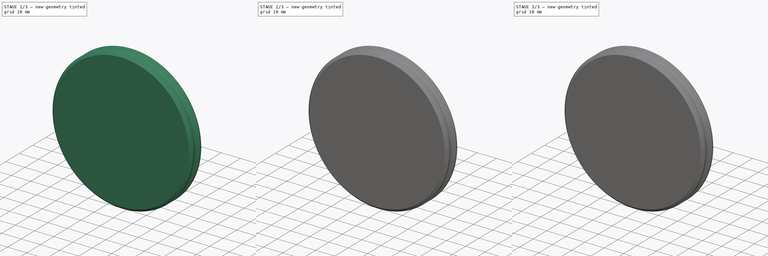
[diagram: build sequence overview — one tinted view per stage of 3, left to right]
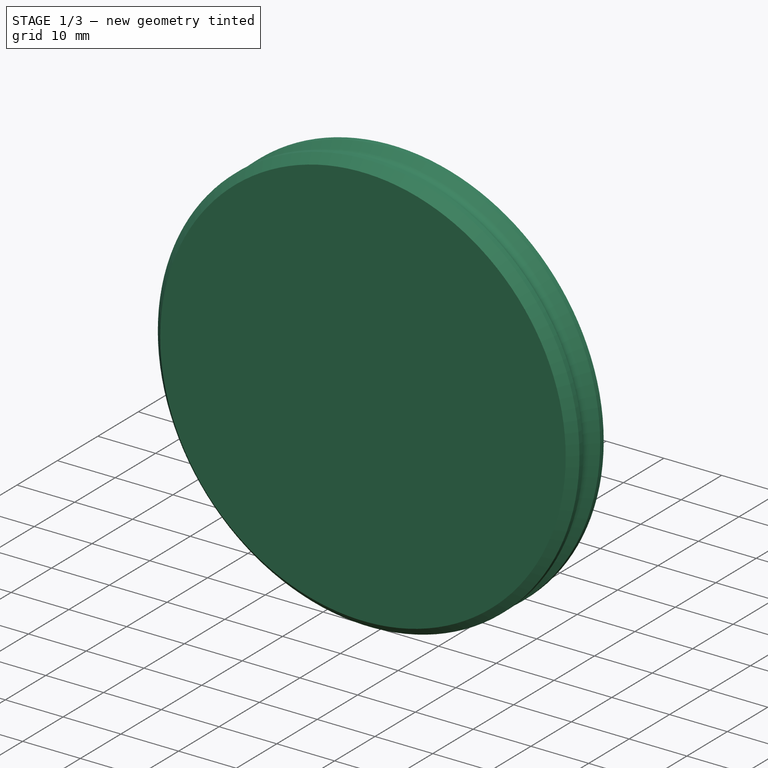
[diagram: stage 1 of 3 — iso view after this stage's code; geometry added in this stage tinted green]
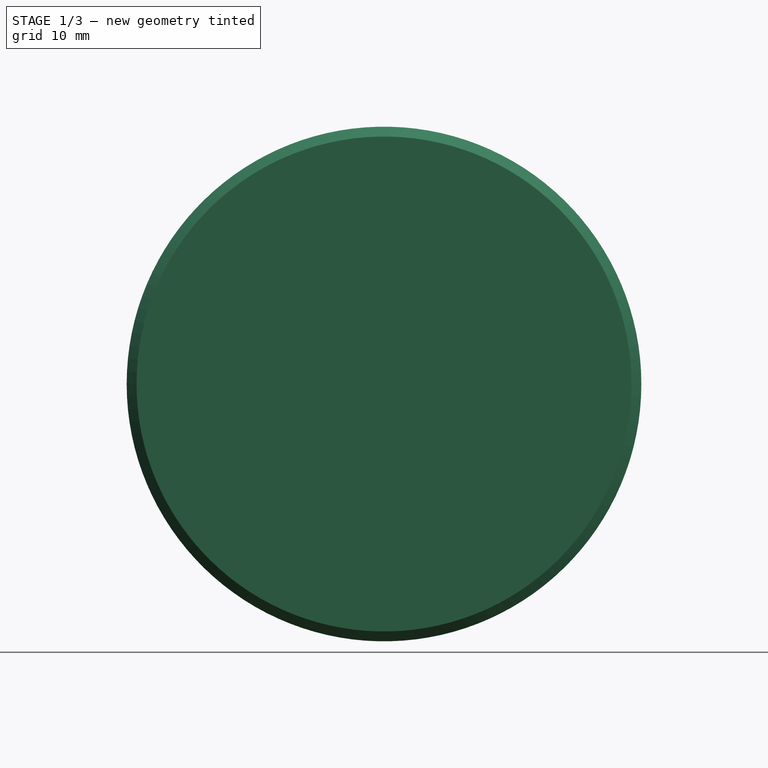
[diagram: stage 1 of 3 — front view after this stage's code; geometry added in this stage tinted green]
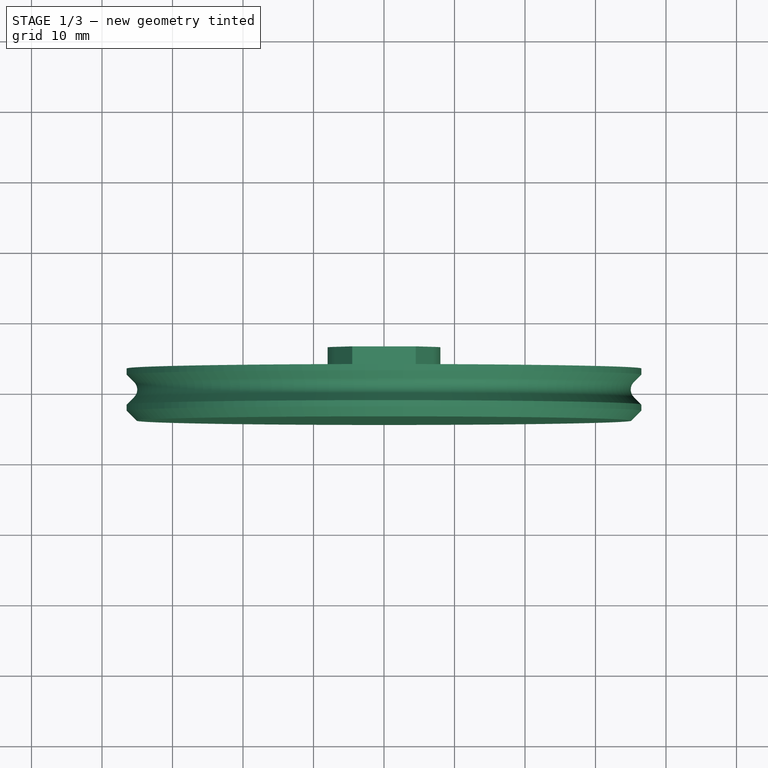
[diagram: stage 1 of 3 — top view after this stage's code; geometry added in this stage tinted green]
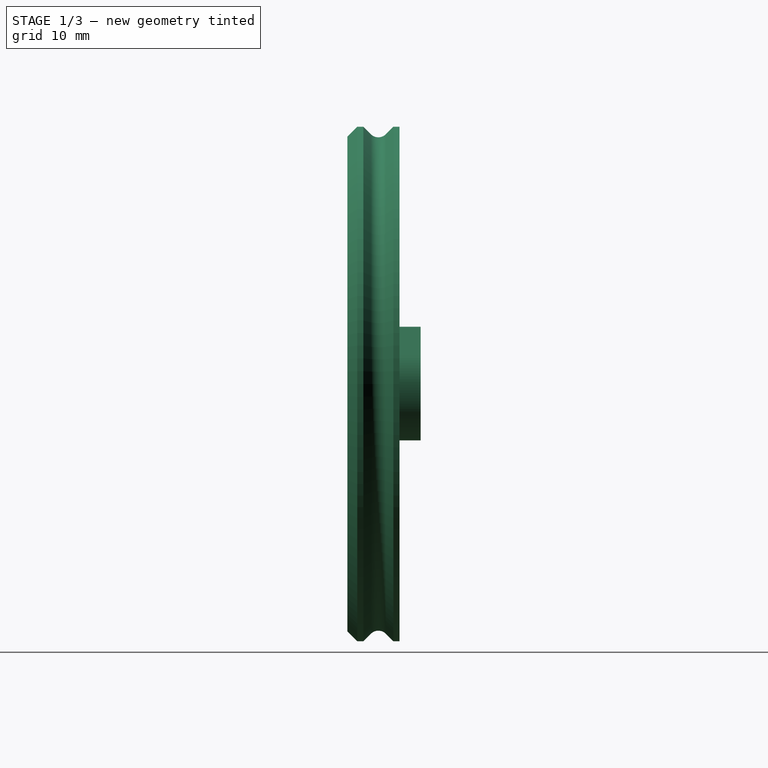
[diagram: stage 1 of 3 — right view after this stage's code; geometry added in this stage tinted green]
FCSTD DOCUMENT  (FreeCAD 0.20R29410 (Git))
Label: wheel-base
License: All rights reserved
LicenseURL: http://en.wikipedia.org/wiki/All_rights_reserved
objects: Sketcher::SketchObject×5, PartDesign::Pocket×3, PartDesign::Revolution×1, PartDesign::Pad×1, PartDesign::Chamfer×1, PartDesign::Body×1, Spreadsheet::Sheet×1, App::Part×1
note: 18 computed .brp shape members not serialized (recipe doc carries the construction recipe); baked Part::Feature solids carry a one-line shape summary decoded from their .brp

FEATURE [Sketcher::SketchObject] Sketch  label="Sketch-section"
  FullyConstrained = true
  MapMode = 5
  Support = -> [XY_Plane]
  sketch-geometry (13):
    g0: Circle CenterX=36.5 CenterY=3e-16 CenterZ=0 NormalX=0 NormalY=0 NormalZ=1 AngleXU=0 Radius=1.5
    g1: LineSegment StartX=0 StartY=-2 StartZ=0 EndX=28.3 EndY=-2 EndZ=0
    g2: LineSegment StartX=28.3 StartY=-2 StartZ=0 EndX=33.3 EndY=3 EndZ=0
    g3: LineSegment StartX=33.3 StartY=3 StartZ=0 EndX=36.5 EndY=3 EndZ=0
    g4: LineSegment StartX=36.5 StartY=3 StartZ=0 EndX=36.5 EndY=2.12132 EndZ=0
    g5: LineSegment StartX=36.5 StartY=2.12132 StartZ=0 EndX=35.4393 EndY=1.06066 EndZ=0
    g6: LineSegment StartX=35.4393 StartY=-1.06066 StartZ=0 EndX=36.5 EndY=-2.12132 EndZ=0
    g7: LineSegment StartX=36.5 StartY=-2.12132 StartZ=0 EndX=36.5 EndY=-3 EndZ=0
    g8: LineSegment StartX=36.5 StartY=-3 StartZ=0 EndX=35.1 EndY=-4.4 EndZ=0
    g9: LineSegment StartX=35.1 StartY=-4.4 StartZ=0 EndX=0 EndY=-4.4 EndZ=0
    g10: LineSegment StartX=0 StartY=-4.4 StartZ=0 EndX=0 EndY=-2 EndZ=0
    g11: LineSegment StartX=36.5 StartY=2.12132 StartZ=0 EndX=36.5 EndY=-2.12132 EndZ=0
    g12: ArcOfCircle CenterX=36.5 CenterY=3e-16 CenterZ=0 NormalX=0 NormalY=0 NormalZ=1 AngleXU=0 Radius=1.5 StartAngle=2.35619 EndAngle=3.92699
  constraints (35):
    c: Radius(g0) = 1.5
    c: DistanceX(g-1,g0) = 36.5
    c: Coincident(g1,g2)
    c: Coincident(g2,g3)
    c: Coincident(g3,g4)
    c: Coincident(g4,g5)
    c: Coincident(g6,g7)
    c: Coincident(g7,g8)
    c: Coincident(g8,g9)
    c: Coincident(g9,g10)
    c: Vertical(g10)
    c: Vertical(g7)
    c: Vertical(g4)
    c: Horizontal(g9)
    c: Horizontal(g1)
    c: Horizontal(g3)
    c: Tangent(g0,g6)
    c: Vertical(g11)
    c: PointOnObject(g0,g11)
    c: Coincident(g11,g4)
    c: Coincident(g11,g6)
    c: DistanceY(g3,g7) = -6
    c: Equal(g7,g4)
    c: Parallel(g2,g5)
    c: Parallel(g5,g8)
    c: DistanceY(g9,g1) = 2.4
    c: PointOnObject(g9,g-2)
    c: Coincident(g1,g10)
    c: DistanceY(g1) = -2
    c: Tangent(g5,g12) = -1.5708
    c: Tangent(g6,g12) = -1.5708
    c: Coincident(g12,g0)
    c: Symmetric(g5,g6,g-1)
    c: Angle(g6,g5) = 1.5708
    c: DistanceX(g1,g1) = 28.3
FEATURE [PartDesign::Revolution] Revolution  label="Revolution-base"
  Angle = 360
  Axis = (0,1,0)
  Base = (0,0,0)
  Profile = -> Sketch
  ReferenceAxis = -> Sketch [V_Axis]
  Reversed = true
FEATURE [Sketcher::SketchObject] Sketch001  label="Sketch-shaft"
  FullyConstrained = true
  MapMode = 5
  Placement = pos=(0,-2,0) rot=(0,0.707107,0.707107;3.14159rad)
  Support = -> [Revolution]
  expr: Constraints[10] = <<Config>>.shaft_cutout_height + <<Config>>.tolerance * 2
  expr: Constraints[14] = <<Config>>.shaft_cutout_height
  expr: Constraints[17] = <<Config>>.shaft_diameter + <<Config>>.tolerance * 2
  expr: Constraints[25] = <<Config>>.shaft_diameter
  sketch-geometry (12):
    g0: LineSegment StartX=4.5 StartY=8.125 StartZ=0 EndX=-4.5 EndY=8.125 EndZ=0
    g1: LineSegment StartX=-4.5 StartY=8.125 StartZ=0 EndX=-6.89396 EndY=4.05873 EndZ=0
    g2: ArcOfCircle CenterX=0 CenterY=0 CenterZ=0 NormalX=0 NormalY=0 NormalZ=1 AngleXU=0 Radius=8 StartAngle=2.6095 EndAngle=6.81528
    g3: LineSegment StartX=6.89396 StartY=4.05873 StartZ=0 EndX=4.5 EndY=8.125 EndZ=0
    g4: LineSegment StartX=-2.04939 StartY=1.6 StartZ=0 EndX=2.04939 EndY=1.6 EndZ=0
    g5: LineSegment StartX=-2.04939 StartY=-1.6 StartZ=0 EndX=2.04939 EndY=-1.6 EndZ=0
    g6: LineSegment StartX=-1.97484 StartY=1.45 StartZ=0 EndX=1.97484 EndY=1.45 EndZ=0
    g7: LineSegment StartX=-1.97484 StartY=-1.45 StartZ=0 EndX=1.97484 EndY=-1.45 EndZ=0
    g8: ArcOfCircle CenterX=0 CenterY=0 CenterZ=0 NormalX=0 NormalY=0 NormalZ=1 AngleXU=0 Radius=2.6 StartAngle=2.47872 EndAngle=3.80447
    g9: ArcOfCircle CenterX=0 CenterY=0 CenterZ=0 NormalX=0 NormalY=0 NormalZ=1 AngleXU=0 Radius=2.6 StartAngle=5.62031 EndAngle=6.94606
    g10: ArcOfCircle CenterX=0 CenterY=0 CenterZ=0 NormalX=0 NormalY=0 NormalZ=1 AngleXU=0 Radius=2.45 StartAngle=2.50826 EndAngle=3.77493
    g11: ArcOfCircle CenterX=0 CenterY=0 CenterZ=0 NormalX=0 NormalY=0 NormalZ=1 AngleXU=0 Radius=2.45 StartAngle=5.64985 EndAngle=6.91652
  constraints (33):
    c: Coincident(g0,g1)
    c: Tangent(g1,g2) = -1.5708
    c: Tangent(g2,g3) = -1.5708
    c: Coincident(g3,g0)
    c: Radius(g2) = 8
    c: Symmetric(g0,g0,g-2)
    c: DistanceX(g0,g0) = 9
    c: DistanceY(g0) = 8.125
    c: Horizontal(g4)
    c: Horizontal(g5)
    c: DistanceY(g5,g4) = 3.2
    c: Symmetric(g4,g5,g-1)
    c: Horizontal(g6)
    c: Horizontal(g7)
    c: DistanceY(g7,g6) = 2.9
    c: Coincident(g2,g-1)
    c: Coincident(g8,g2)
    c: Diameter(g8) = 5.2
    c: Coincident(g8,g4)
    c: Coincident(g9,g4)
    c: Equal(g8,g9)
    c: PointOnObject(g8,g5)
    c: Coincident(g8,g9)
    c: Coincident(g5,g9)
    c: Coincident(g10,g2)
    c: Diameter(g10) = 4.9
    c: Coincident(g10,g6)
    c: Equal(g10,g11)
    c: Coincident(g10,g11)
    c: Coincident(g6,g11)
    c: Coincident(g7,g10)
    c: Coincident(g7,g11)
    c: Equal(g6,g7)
FEATURE [PartDesign::Pad] Pad  label="Pad-shaft"
  BaseFeature = -> Revolution
  Direction = (0,1,-2e-16)
  Length = 8
  Length2 = 100
  Profile = -> Sketch001
  Type = 0
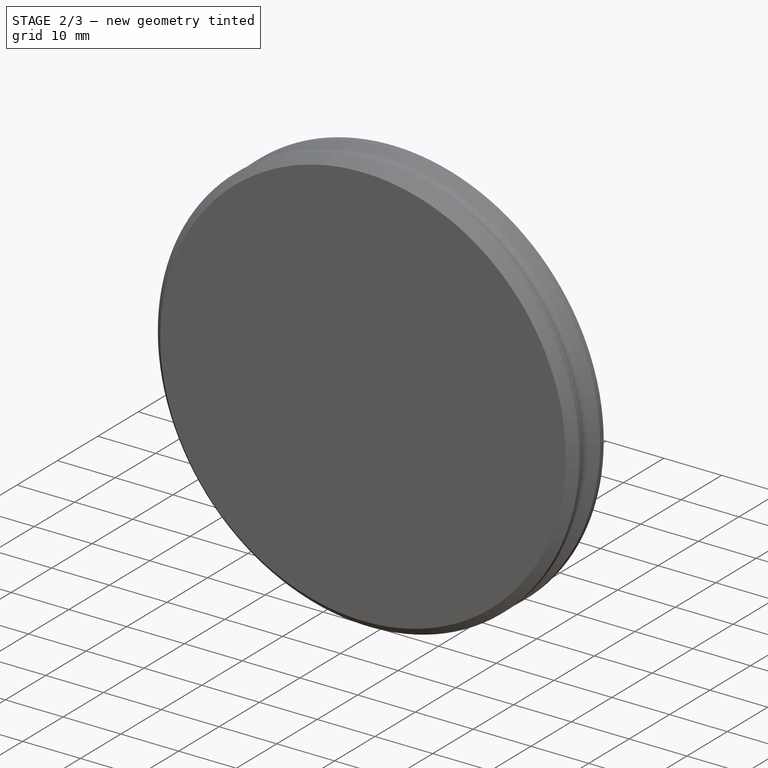
[diagram: stage 2 of 3 — iso view after this stage's code; geometry added in this stage tinted green]
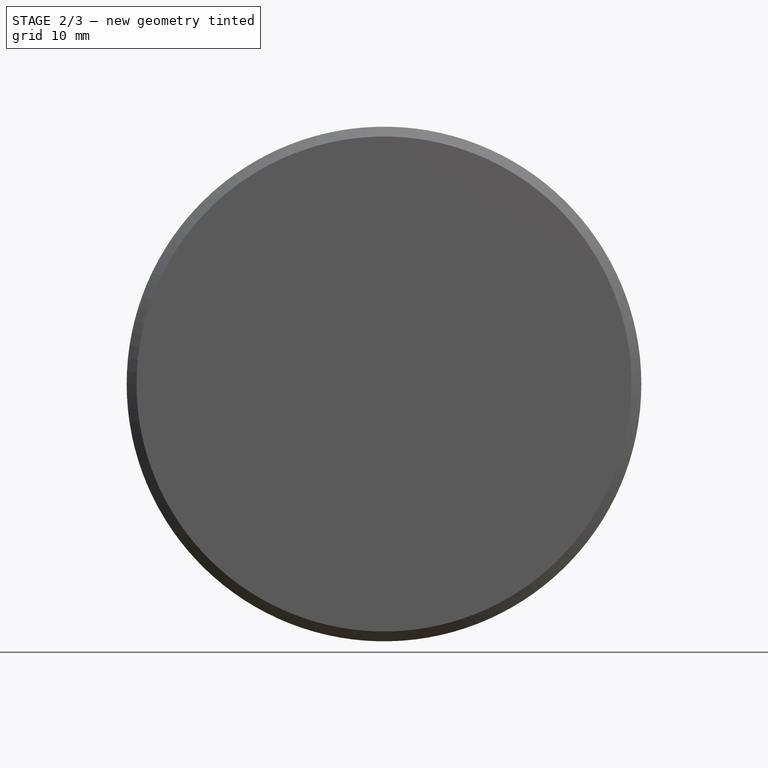
[diagram: stage 2 of 3 — front view after this stage's code; geometry added in this stage tinted green]
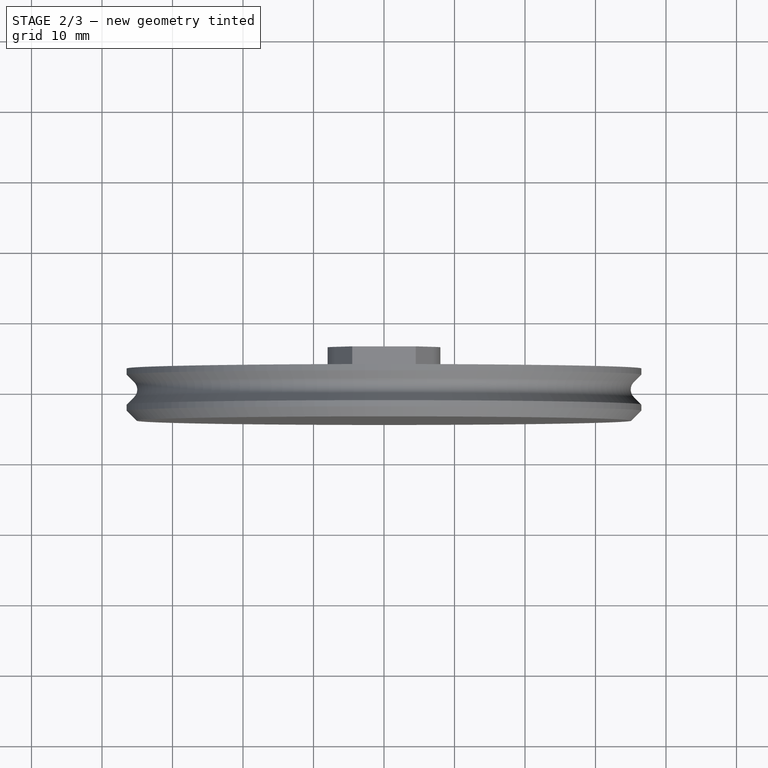
[diagram: stage 2 of 3 — top view after this stage's code; geometry added in this stage tinted green]
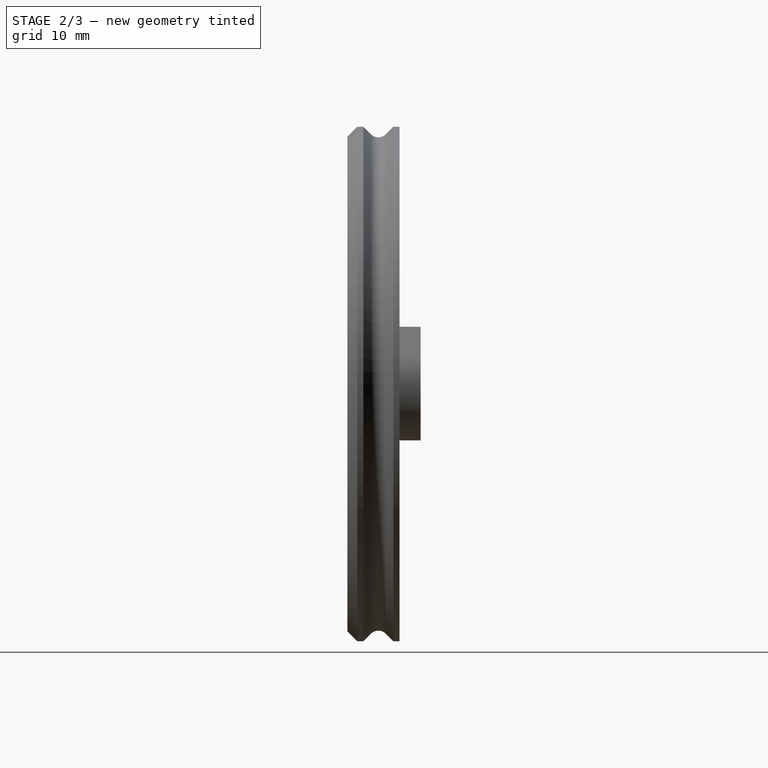
[diagram: stage 2 of 3 — right view after this stage's code; geometry added in this stage tinted green]
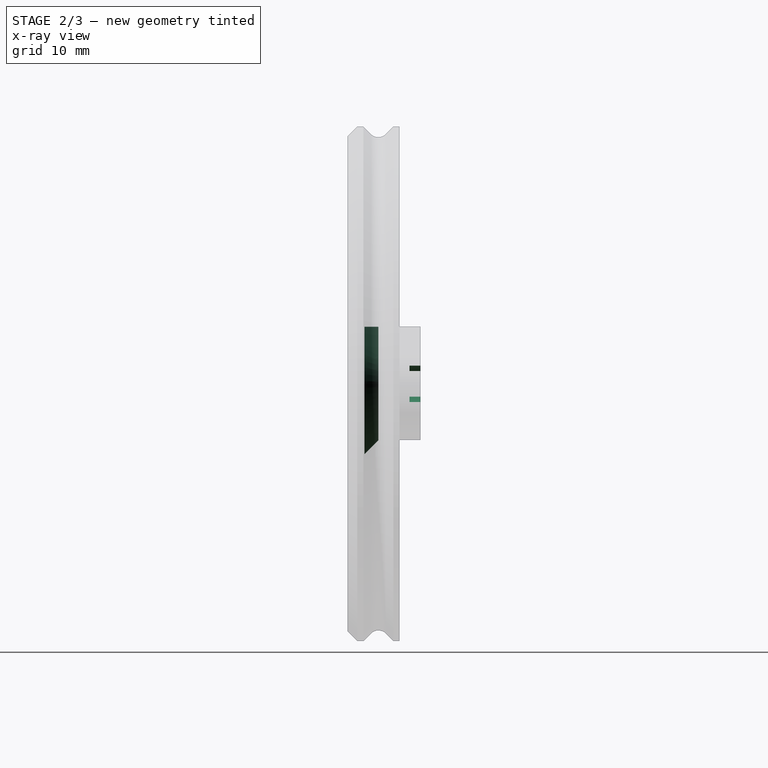
[diagram: stage 2 of 3 — x-ray composite at the right view; earlier geometry ghosted, this stage's added geometry solid]
FEATURE [PartDesign::Chamfer] Chamfer  label="Chamfer-shaft"
  Angle = 45
  Base = -> Pad [Edge4]
  BaseFeature = -> Pad
  ChamferType = 0
  FlipDirection = false
  Size = 2
  Size2 = 1
  SupportTransform = true
  UseAllEdges = false
FEATURE [Sketcher::SketchObject] Sketch002  label="Sketch-motorshaft-cutout"
  FullyConstrained = true
  MapMode = 5
  Placement = pos=(0,6,-1.3e-15) rot=(0,0.707107,0.707107;3.14159rad)
  Support = -> [Chamfer]
  expr: Constraints[1] = <<Config>>.shaft_diameter + <<Config>>.tolerance * 2
  sketch-geometry (1):
    g0: Circle CenterX=0 CenterY=0 CenterZ=0 NormalX=0 NormalY=0 NormalZ=1 AngleXU=0 Radius=2.6
  constraints (2):
    c: Coincident(g0,g-1)
    c: Diameter(g0) = 5.2
FEATURE [PartDesign::Pocket] Pocket  label="Pocket-motorshaft-cutout"
  BaseFeature = -> Chamfer
  Direction = (0,-1,2e-16)
  Length = 1.6
  Length2 = 100
  Profile = -> Sketch002
  Refine = true
  Type = 0
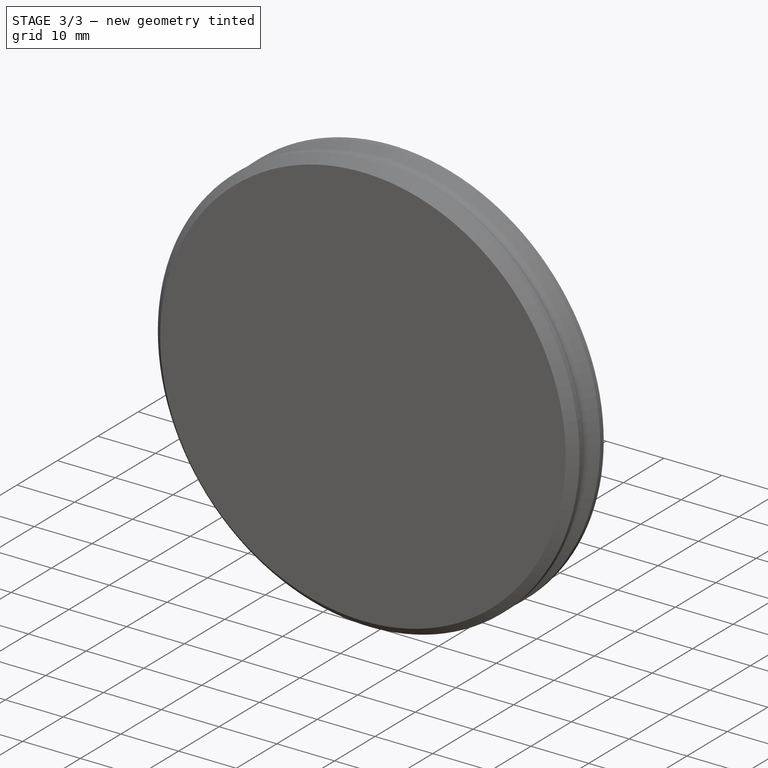
[diagram: stage 3 of 3 — iso view after this stage's code; geometry added in this stage tinted green]
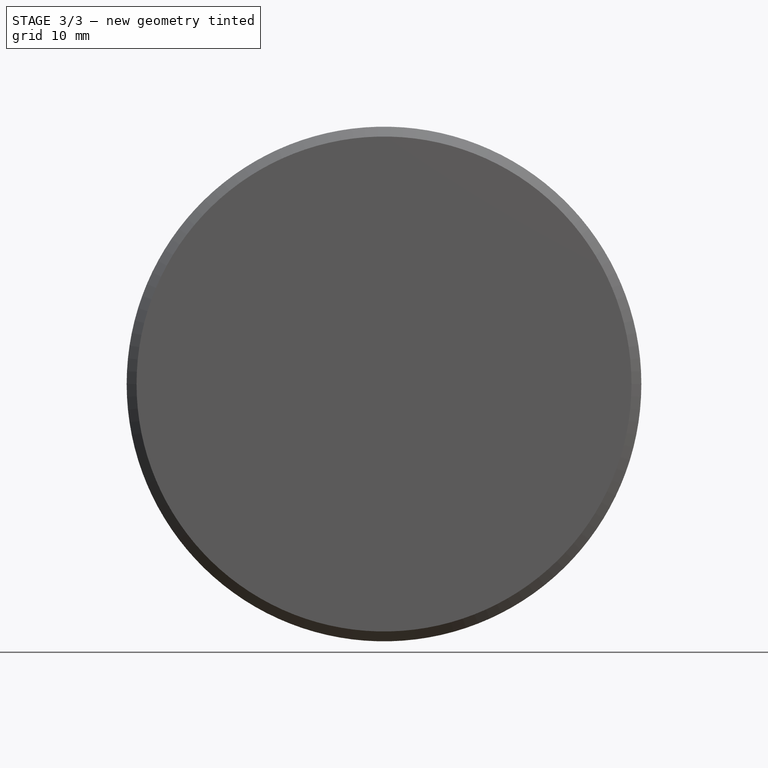
[diagram: stage 3 of 3 — front view after this stage's code; geometry added in this stage tinted green]
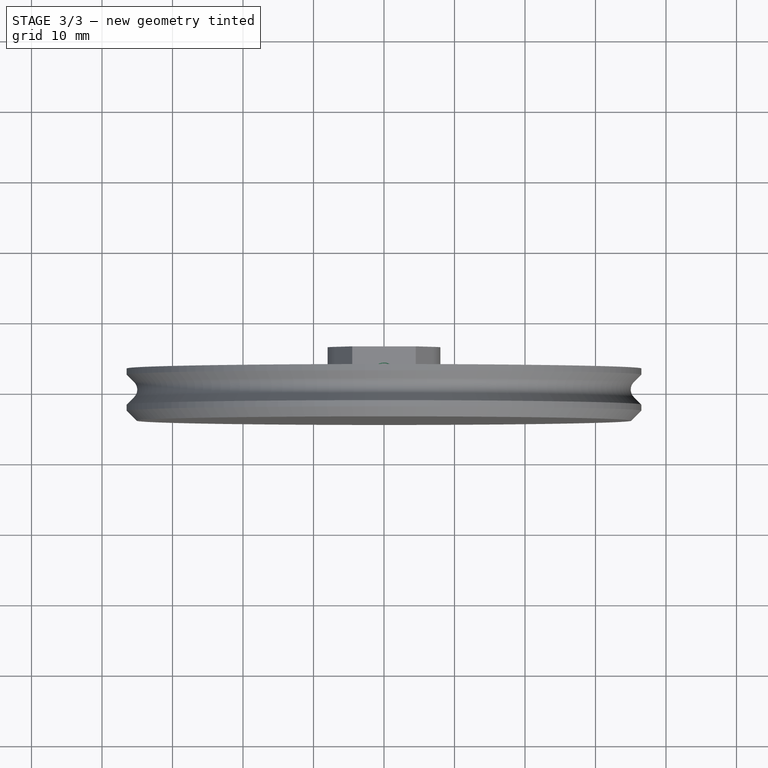
[diagram: stage 3 of 3 — top view after this stage's code; geometry added in this stage tinted green]
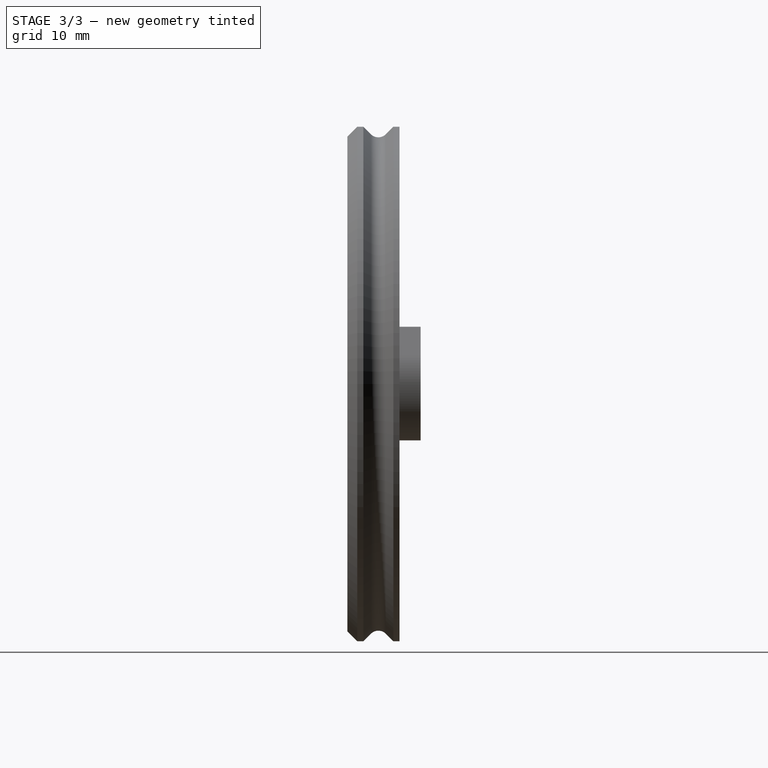
[diagram: stage 3 of 3 — right view after this stage's code; geometry added in this stage tinted green]
FEATURE [Sketcher::SketchObject] Sketch003  label="Sketch-screw-hole"
  FullyConstrained = true
  MapMode = 5
  Placement = pos=(0,1.8e-15,8.125) rot=(0,0,1;0rad)
  Support = -> [Pocket]
  sketch-geometry (1):
    g0: Circle CenterX=0 CenterY=2 CenterZ=0 NormalX=0 NormalY=0 NormalZ=1 AngleXU=0 Radius=1.7
  constraints (3):
    c: PointOnObject(g0,g-2)
    c: Diameter(g0) = 3.4
    c: DistanceY(g0) = 2
FEATURE [PartDesign::Pocket] Pocket001  label="Pocket-screw-hole"
  BaseFeature = -> Pocket
  Direction = (0,-2e-16,-1)
  Length = 8
  Length2 = 100
  Profile = -> Sketch003
  Type = 0
FEATURE [Sketcher::SketchObject] Sketch004  label="Sketch-nut-hole"
  AttachmentOffset = pos=(0,0,-2.7375) rot=(0,0,1;0rad)
  FullyConstrained = true
  MapMode = 5
  Placement = pos=(0,1.2e-15,5.3875) rot=(0,0,1;0rad)
  Support = -> [Pocket001]
  expr: Constraints[9] = 5.3 + <<Config>>.tolerance * 2
  sketch-geometry (5):
    g0: LineSegment StartX=-2.8 StartY=0.0165808 StartZ=0 EndX=-2.8 EndY=6.01658 EndZ=0
    g1: LineSegment StartX=-2.8 StartY=6.01658 StartZ=0 EndX=2.8 EndY=6.01658 EndZ=0
    g2: LineSegment StartX=2.8 StartY=6.01658 StartZ=0 EndX=2.8 EndY=0.0165808 EndZ=0
    g3: LineSegment StartX=2.8 StartY=0.0165808 StartZ=0 EndX=0 EndY=-1.6 EndZ=0
    g4: LineSegment StartX=0 StartY=-1.6 StartZ=0 EndX=-2.8 EndY=0.0165808 EndZ=0
  constraints (13):
    c: Vertical(g0)
    c: Coincident(g0,g1)
    c: Coincident(g1,g2)
    c: Coincident(g2,g3)
    c: PointOnObject(g3,g-2)
    c: Coincident(g3,g4)
    c: Coincident(g4,g0)
    c: Angle(g3,g4) = 2.0944
    c: Symmetric(g0,g1,g-2)
    c: DistanceX(g1,g1) = 5.6
    c: DistanceY(g3) = -1.6
    c: Symmetric(g2,g0,g-2)
    c: DistanceY(g2,g2) = 6
FEATURE [PartDesign::Pocket] Pocket002  label="Pocket-nut-hole"
  BaseFeature = -> Pocket001
  Direction = (0,-2e-16,-1)
  Length = 2.35
  Length2 = 100
  Midplane = true
  Profile = -> Sketch004
  ReferenceAxis = -> Sketch004 [N_Axis]
  Type = 0
  expr: Length = 2.2 + <<Config>>.tolerance * 1
FEATURE [PartDesign::Body] Body  label="Body-base-wheel"
  Group = -> [Revolution,Sketch001,Pad,Chamfer,Sketch002,Pocket,Sketch003,Pocket001,Sketch004,Pocket002]
  Origin = -> Origin
  Tip = -> Pocket002
FEATURE [Spreadsheet::Sheet] Spreadsheet  label="Config"
  cells = A1=Escornabot project; A2=Shaft; A3=diameter; B3(shaft_diameter)=4.9; A4=cutout height; B4(shaft_cutout_height)=2.9; A5=Printing; A6=tolerance; B6(tolerance)=0.15
FEATURE [App::Part] Part  label="Part-base-wheel"
  Group = -> [Body,Spreadsheet]
  Origin = -> Origin001
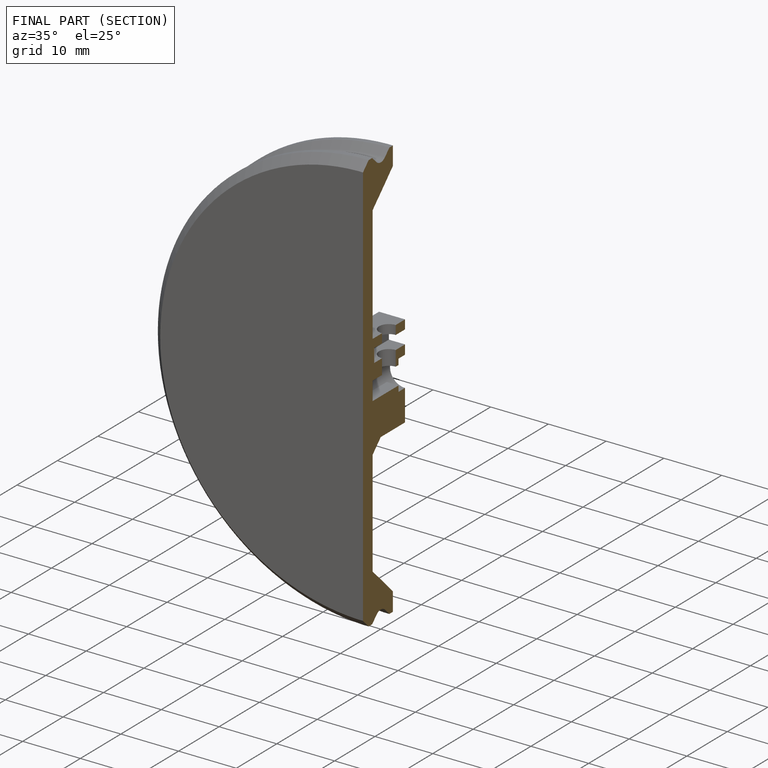
[diagram: finished part — half-section view (interior)]
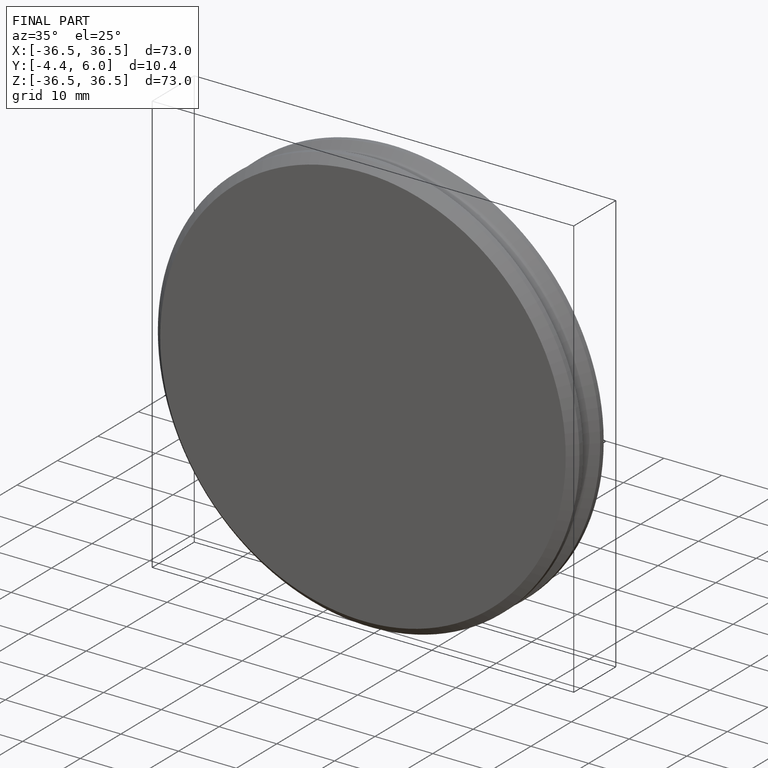
[diagram: finished part — iso view with bounding-box wireframe]
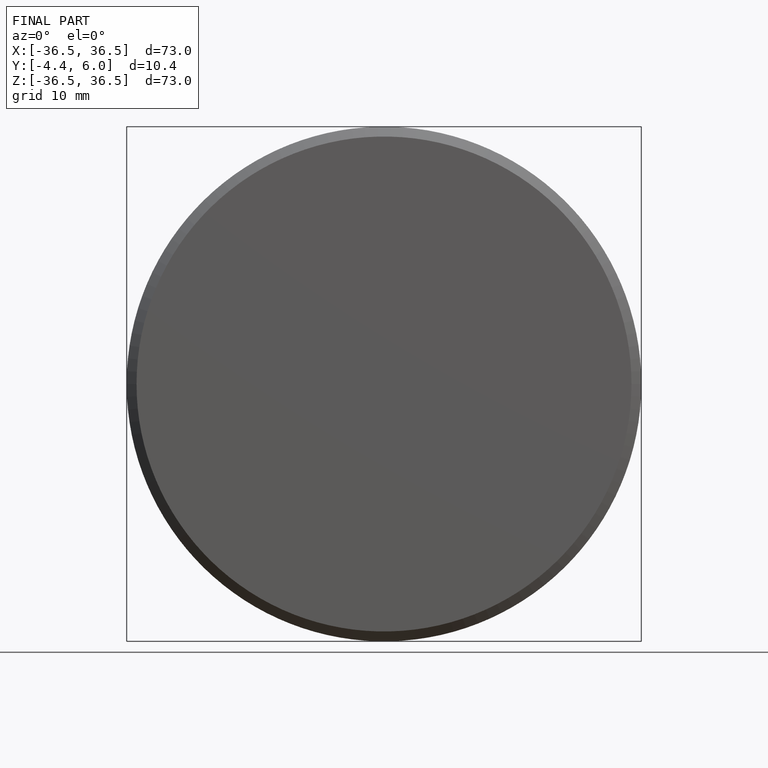
[diagram: finished part — front view with bounding-box wireframe]
